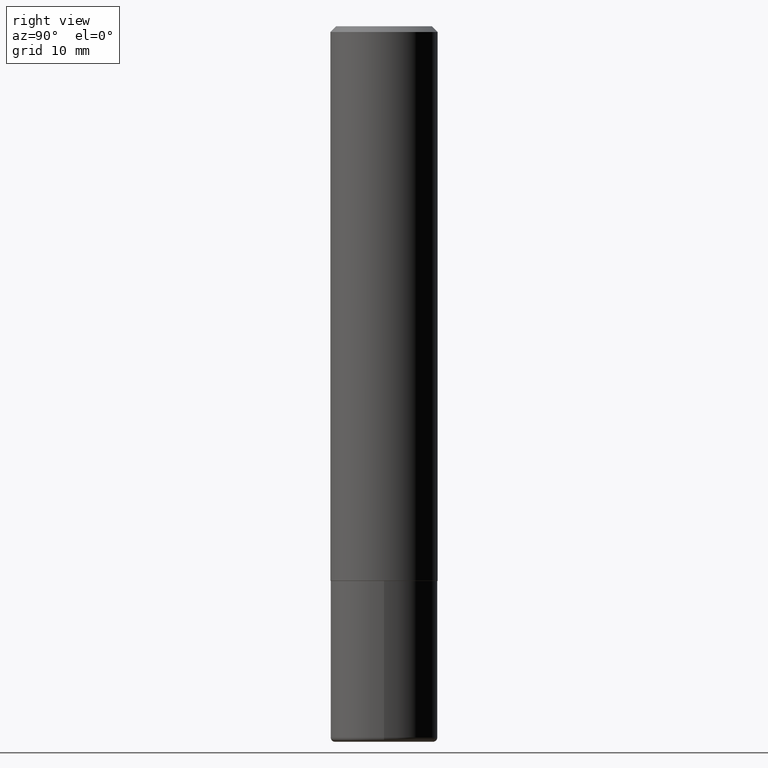
[diagram: clean part render]
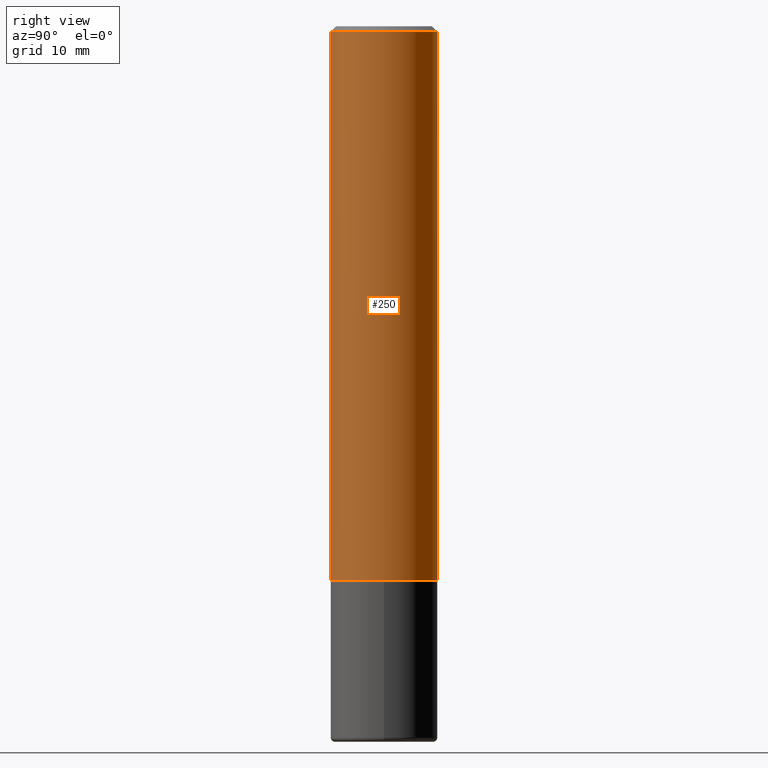
[diagram: same view with one face highlighted and labeled with its STEP entity id]
A machine part, right view. The second image highlights one B-rep face of the part: STEP entity #250.
In plain terms, the highlighted cylindrical surface (partial cylindrical patch) has radius 4.7625 mm, axis along (-0, 0, 1).
Its self-contained STEP definition (entity closure, byte-faithful):
#4 = VERTEX_POINT ( 'NONE', #258 ) ;
#8 = ORIENTED_EDGE ( 'NONE', *, *, #147, .T. ) ;
#39 = EDGE_CURVE ( 'NONE', #289, #267, #72, .T. ) ;
#66 = DIRECTION ( 'NONE',  ( -6.982962677686266711E-15, -1.000000000000000000, 3.483106191921935949E-15 ) ) ;
#72 = LINE ( 'NONE', #200, #93 ) ;
#93 = VECTOR ( 'NONE', #324, 39.37007874015748143 ) ;
#100 = AXIS2_PLACEMENT_3D ( 'NONE', #190, #288, #199 ) ;
#103 = CARTESIAN_POINT ( 'NONE',  ( 1.332267629550188243E-15, 0.1875000000000000833, -6.543844106375971128E-16 ) ) ;
#108 = AXIS2_PLACEMENT_3D ( 'NONE', #358, #260, #66 ) ;
#115 = ORIENTED_EDGE ( 'NONE', *, *, #363, .F. ) ;
#134 = LINE ( 'NONE', #103, #216 ) ;
#139 = CARTESIAN_POINT ( 'NONE',  ( 4.738808849229882845E-29, -6.760227218160132917E-15, -1.936999999999999833 ) ) ;
#147 = EDGE_CURVE ( 'NONE', #289, #4, #236, .T. ) ;
#152 = ORIENTED_EDGE ( 'NONE', *, *, #271, .T. ) ;
#162 = AXIS2_PLACEMENT_3D ( 'NONE', #139, #404, #337 ) ;
#173 = ORIENTED_EDGE ( 'NONE', *, *, #39, .F. ) ;
#190 = CARTESIAN_POINT ( 'NONE',  ( 0.000000000000000000, 0.000000000000000000, 0.000000000000000000 ) ) ;
#199 = DIRECTION ( 'NONE',  ( -6.982962677686266711E-15, -1.000000000000000000, 3.490050190067182892E-15 ) ) ;
#200 = CARTESIAN_POINT ( 'NONE',  ( -1.309305502066175600E-15, -0.1875000000000000833, 6.543844106375971128E-16 ) ) ;
#216 = VECTOR ( 'NONE', #314, 39.37007874015748143 ) ;
#217 = CARTESIAN_POINT ( 'NONE',  ( 1.309305502066175205E-15, 0.1874999999999999167, -0.02000000000000073941 ) ) ;
#235 = FACE_OUTER_BOUND ( 'NONE', #387, .T. ) ;
#236 = CIRCLE ( 'NONE', #162, 0.1875000000000001943 ) ;
#250 = ADVANCED_FACE ( 'NONE', ( #235 ), #417, .T. ) ;
#258 = CARTESIAN_POINT ( 'NONE',  ( 1.332267629550212500E-15, 0.1874999999999934219, -1.937000000000000499 ) ) ;
#260 = DIRECTION ( 'NONE',  ( -2.446468172034013014E-29, 3.490050190067182892E-15, 1.000000000000000000 ) ) ;
#267 = VERTEX_POINT ( 'NONE', #329 ) ;
#271 = EDGE_CURVE ( 'NONE', #4, #416, #134, .T. ) ;
#288 = DIRECTION ( 'NONE',  ( -2.446468172034013014E-29, 3.490050190067182892E-15, 1.000000000000000000 ) ) ;
#289 = VERTEX_POINT ( 'NONE', #320 ) ;
#303 = CIRCLE ( 'NONE', #108, 0.1874999999999999722 ) ;
#314 = DIRECTION ( 'NONE',  ( -2.446468172034013014E-29, 3.490050190067182892E-15, 1.000000000000000000 ) ) ;
#320 = CARTESIAN_POINT ( 'NONE',  ( -1.309305502066128860E-15, -0.1875000000000069389, -1.936999999999999389 ) ) ;
#324 = DIRECTION ( 'NONE',  ( -2.446468172034013014E-29, 3.490050190067182892E-15, 1.000000000000000000 ) ) ;
#329 = CARTESIAN_POINT ( 'NONE',  ( -1.286343374582161379E-15, -0.1875000000000000555, -0.01999999999999943143 ) ) ;
#337 = DIRECTION ( 'NONE',  ( -6.982962677686265922E-15, -1.000000000000000000, 2.913971193241877611E-15 ) ) ;
#358 = CARTESIAN_POINT ( 'NONE',  ( 4.892936344068047188E-31, -6.980100380134394825E-17, -0.02000000000000008715 ) ) ;
#363 = EDGE_CURVE ( 'NONE', #267, #416, #303, .T. ) ;
#387 = EDGE_LOOP ( 'NONE', ( #8, #152, #115, #173 ) ) ;
#404 = DIRECTION ( 'NONE',  ( -2.446468172034013014E-29, 3.490050190067182892E-15, 1.000000000000000000 ) ) ;
#416 = VERTEX_POINT ( 'NONE', #217 ) ;
#417 = CYLINDRICAL_SURFACE ( 'NONE', #100, 0.1875000000000000833 ) ;